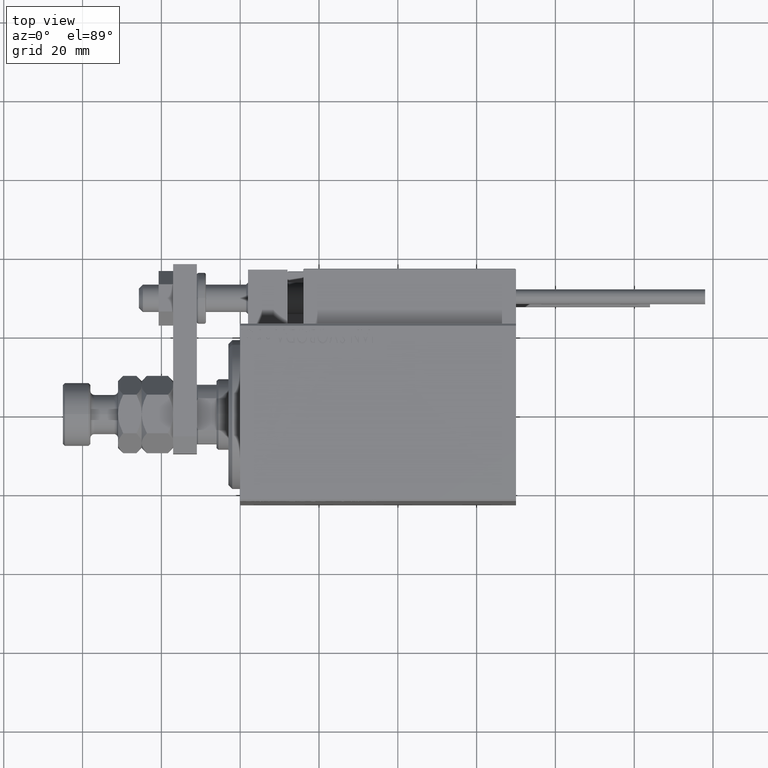
[diagram: clean part render]
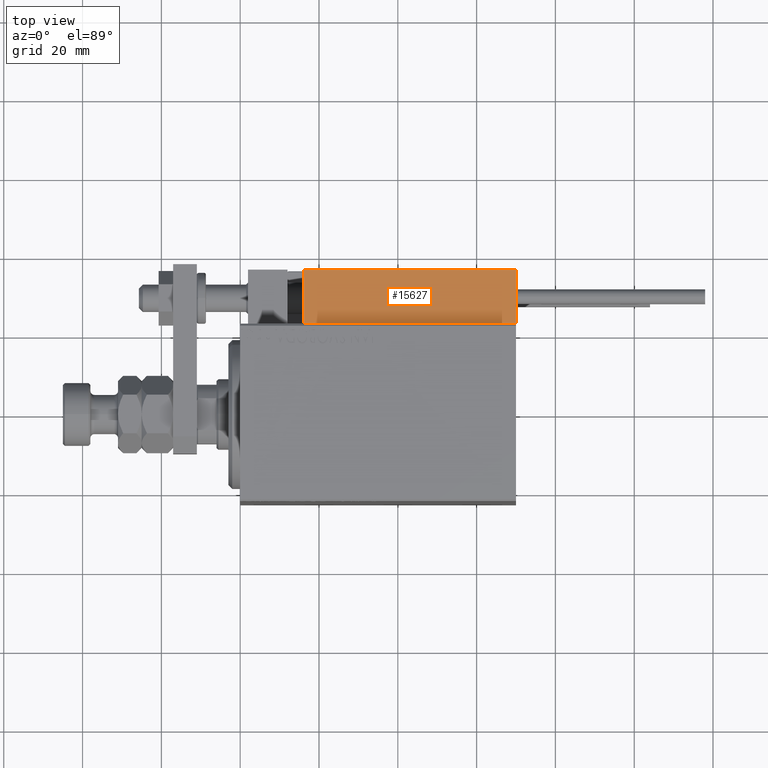
[diagram: same view with one face highlighted and labeled with its STEP entity id]
A machine part, top view. The second image highlights one B-rep face of the part: STEP entity #15627.
In plain terms, the highlighted planar face has unit normal (-0, -0, -1).
Its self-contained STEP definition (entity closure, byte-faithful):
#5641 = ORIENTED_EDGE ( 'NONE', *, *, #31538, .T. ) ;
#6033 = CARTESIAN_POINT ( 'NONE',  ( 27.00000000000006395, 20.00000000000001776, 14.00000000000000000 ) ) ;
#6236 = AXIS2_PLACEMENT_3D ( 'NONE', #6033, #42188, #10217 ) ;
#6316 = ORIENTED_EDGE ( 'NONE', *, *, #7761, .F. ) ;
#7761 = EDGE_CURVE ( 'NONE', #11081, #32336, #39647, .T. ) ;
#7973 = VECTOR ( 'NONE', #19708, 1000.000000000000000 ) ;
#7992 = ORIENTED_EDGE ( 'NONE', *, *, #34222, .T. ) ;
#10217 = DIRECTION ( 'NONE',  ( 1.000000000000000000, -6.424901762877063495E-17, 0.000000000000000000 ) ) ;
#10787 = DIRECTION ( 'NONE',  ( -1.000000000000000000, 6.424901762877062263E-17, 0.000000000000000000 ) ) ;
#10851 = CARTESIAN_POINT ( 'NONE',  ( -26.99999999999993605, 20.00000000000002132, 14.00000000000000000 ) ) ;
#11081 = VERTEX_POINT ( 'NONE', #37080 ) ;
#11100 = DIRECTION ( 'NONE',  ( -0.000000000000000000, -0.000000000000000000, -1.000000000000000000 ) ) ;
#11240 = VECTOR ( 'NONE', #28593, 1000.000000000000000 ) ;
#11591 = CARTESIAN_POINT ( 'NONE',  ( 27.00000000000006395, 20.00000000000001776, 13.70000000000000107 ) ) ;
#14793 = EDGE_CURVE ( 'NONE', #43952, #32336, #26009, .T. ) ;
#15168 = FACE_OUTER_BOUND ( 'NONE', #28381, .T. ) ;
#15498 = VECTOR ( 'NONE', #10787, 1000.000000000000000 ) ;
#15627 = ADVANCED_FACE ( 'NONE', ( #15168 ), #26216, .F. ) ;
#16364 = CARTESIAN_POINT ( 'NONE',  ( 27.00000000000006395, 20.00000000000001776, 0.000000000000000000 ) ) ;
#16614 = CARTESIAN_POINT ( 'NONE',  ( 27.00000000000006395, 20.00000000000001776, 13.70000000000000107 ) ) ;
#17009 = ORIENTED_EDGE ( 'NONE', *, *, #14793, .T. ) ;
#19708 = DIRECTION ( 'NONE',  ( 1.000000000000000000, -6.424901762877063495E-17, -0.000000000000000000 ) ) ;
#22331 = CARTESIAN_POINT ( 'NONE',  ( 27.00000000000006395, 20.00000000000001776, 0.000000000000000000 ) ) ;
#25761 = CARTESIAN_POINT ( 'NONE',  ( -26.99999999999993605, 20.00000000000002132, 0.000000000000000000 ) ) ;
#26009 = LINE ( 'NONE', #22331, #15498 ) ;
#26057 = LINE ( 'NONE', #11591, #7973 ) ;
#26216 = PLANE ( 'NONE',  #6236 ) ;
#28381 = EDGE_LOOP ( 'NONE', ( #6316, #7992, #5641, #17009 ) ) ;
#28593 = DIRECTION ( 'NONE',  ( -0.000000000000000000, -0.000000000000000000, -1.000000000000000000 ) ) ;
#28975 = VERTEX_POINT ( 'NONE', #16614 ) ;
#31538 = EDGE_CURVE ( 'NONE', #28975, #43952, #32273, .T. ) ;
#32273 = LINE ( 'NONE', #45079, #11240 ) ;
#32336 = VERTEX_POINT ( 'NONE', #25761 ) ;
#34222 = EDGE_CURVE ( 'NONE', #11081, #28975, #26057, .T. ) ;
#37080 = CARTESIAN_POINT ( 'NONE',  ( -26.99999999999993605, 20.00000000000002132, 13.70000000000000107 ) ) ;
#39647 = LINE ( 'NONE', #10851, #47889 ) ;
#42188 = DIRECTION ( 'NONE',  ( -6.424901762877063495E-17, -1.000000000000000000, 0.000000000000000000 ) ) ;
#43952 = VERTEX_POINT ( 'NONE', #16364 ) ;
#45079 = CARTESIAN_POINT ( 'NONE',  ( 27.00000000000006395, 20.00000000000001776, 14.00000000000000000 ) ) ;
#47889 = VECTOR ( 'NONE', #11100, 1000.000000000000000 ) ;